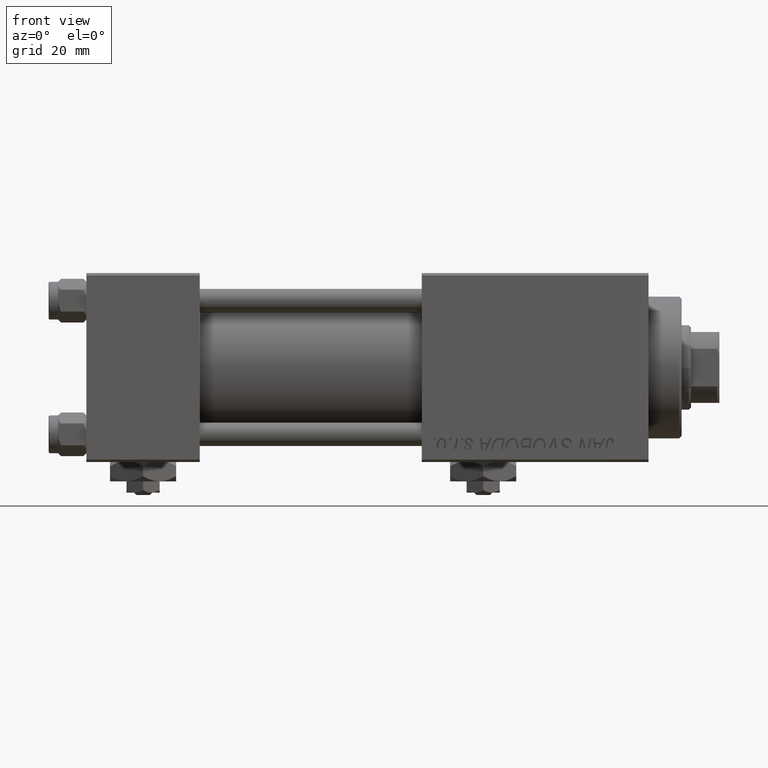
[diagram: clean part render]
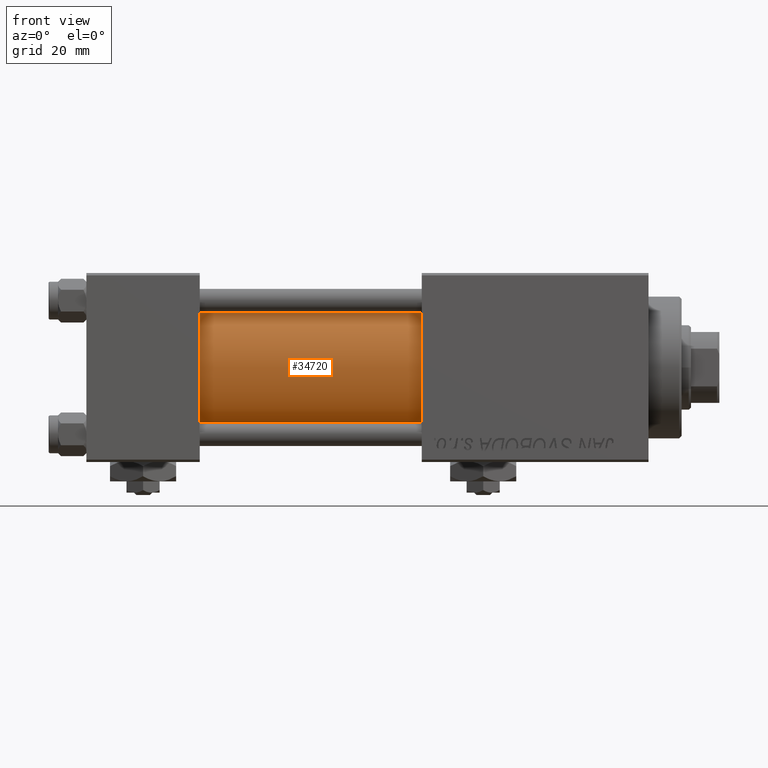
[diagram: same view with one face highlighted and labeled with its STEP entity id]
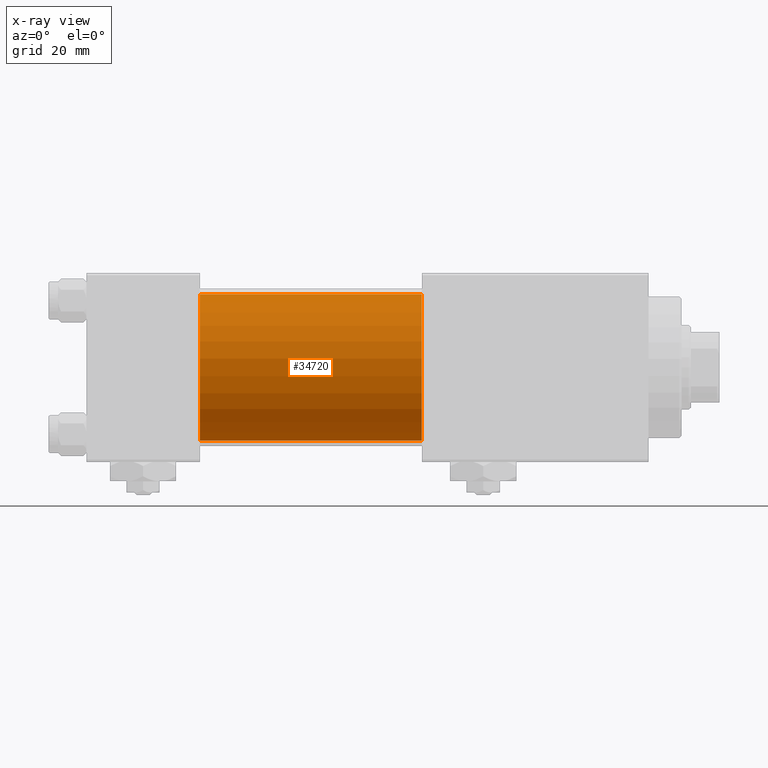
[diagram: x-ray of the same camera — body ghosted, the highlighted face saturated]
A machine part, front view. The second image highlights one B-rep face of the part: STEP entity #34720.
The next image is the same camera in x-ray: the body ghosted, the highlighted face saturated — about 0% of this face is hidden behind the body in this view.
In plain terms, the highlighted cylindrical surface (partial cylindrical patch) has radius 15.5 mm, axis along (-1, -0, -0).
Its self-contained STEP definition (entity closure, byte-faithful):
#1731 = CYLINDRICAL_SURFACE ( 'NONE', #14307, 15.50000000000000000 ) ;
#4228 = DIRECTION ( 'NONE',  ( 0.000000000000000000, 0.000000000000000000, -1.000000000000000000 ) ) ;
#4459 = CARTESIAN_POINT ( 'NONE',  ( 71.00000000000001421, -7.038826752868131828E-16, -15.50000000000000000 ) ) ;
#6271 = DIRECTION ( 'NONE',  ( -1.000000000000000000, -0.000000000000000000, -0.000000000000000000 ) ) ;
#7239 = ORIENTED_EDGE ( 'NONE', *, *, #46759, .F. ) ;
#8273 = VERTEX_POINT ( 'NONE', #9889 ) ;
#9032 = DIRECTION ( 'NONE',  ( 0.000000000000000000, 0.000000000000000000, 1.000000000000000000 ) ) ;
#9889 = CARTESIAN_POINT ( 'NONE',  ( 24.00000000000000000, -2.602085213965210642E-15, 15.50000000000000000 ) ) ;
#12037 = CARTESIAN_POINT ( 'NONE',  ( 24.00000000000000000, -7.038826752868131828E-16, -15.50000000000000000 ) ) ;
#12098 = LINE ( 'NONE', #4459, #39030 ) ;
#13846 = CARTESIAN_POINT ( 'NONE',  ( 71.00000000000001421, -2.602085213965210642E-15, 0.000000000000000000 ) ) ;
#14307 = AXIS2_PLACEMENT_3D ( 'NONE', #13846, #49679, #38082 ) ;
#19419 = VERTEX_POINT ( 'NONE', #12037 ) ;
#22944 = ORIENTED_EDGE ( 'NONE', *, *, #40416, .T. ) ;
#23446 = AXIS2_PLACEMENT_3D ( 'NONE', #48480, #35845, #4228 ) ;
#23557 = AXIS2_PLACEMENT_3D ( 'NONE', #48831, #29068, #9032 ) ;
#26808 = CIRCLE ( 'NONE', #23446, 15.50000000000000000 ) ;
#27745 = EDGE_CURVE ( 'NONE', #29823, #33167, #26808, .T. ) ;
#29068 = DIRECTION ( 'NONE',  ( 1.000000000000000000, 0.000000000000000000, 0.000000000000000000 ) ) ;
#29823 = VERTEX_POINT ( 'NONE', #41880 ) ;
#30241 = CARTESIAN_POINT ( 'NONE',  ( 71.00000000000001421, -2.602085213965210642E-15, 15.50000000000000000 ) ) ;
#32576 = ORIENTED_EDGE ( 'NONE', *, *, #33675, .T. ) ;
#33167 = VERTEX_POINT ( 'NONE', #45852 ) ;
#33675 = EDGE_CURVE ( 'NONE', #8273, #19419, #46241, .T. ) ;
#33819 = EDGE_LOOP ( 'NONE', ( #7239, #34789, #22944, #32576 ) ) ;
#34720 = ADVANCED_FACE ( 'NONE', ( #37827 ), #1731, .T. ) ;
#34789 = ORIENTED_EDGE ( 'NONE', *, *, #27745, .F. ) ;
#35567 = DIRECTION ( 'NONE',  ( -1.000000000000000000, -0.000000000000000000, -0.000000000000000000 ) ) ;
#35845 = DIRECTION ( 'NONE',  ( 1.000000000000000000, 0.000000000000000000, 0.000000000000000000 ) ) ;
#37827 = FACE_OUTER_BOUND ( 'NONE', #33819, .T. ) ;
#37889 = LINE ( 'NONE', #30241, #45638 ) ;
#38082 = DIRECTION ( 'NONE',  ( 0.000000000000000000, 0.000000000000000000, 1.000000000000000000 ) ) ;
#39030 = VECTOR ( 'NONE', #35567, 1000.000000000000000 ) ;
#40416 = EDGE_CURVE ( 'NONE', #29823, #8273, #37889, .T. ) ;
#41880 = CARTESIAN_POINT ( 'NONE',  ( 71.00000000000001421, -2.602085213965210642E-15, 15.50000000000000000 ) ) ;
#45638 = VECTOR ( 'NONE', #6271, 1000.000000000000000 ) ;
#45852 = CARTESIAN_POINT ( 'NONE',  ( 71.00000000000001421, -7.038826752868131828E-16, -15.50000000000000000 ) ) ;
#46241 = CIRCLE ( 'NONE', #23557, 15.50000000000000000 ) ;
#46759 = EDGE_CURVE ( 'NONE', #33167, #19419, #12098, .T. ) ;
#48480 = CARTESIAN_POINT ( 'NONE',  ( 71.00000000000001421, -2.602085213965210642E-15, 0.000000000000000000 ) ) ;
#48831 = CARTESIAN_POINT ( 'NONE',  ( 24.00000000000000000, -2.602085213965210642E-15, 0.000000000000000000 ) ) ;
#49679 = DIRECTION ( 'NONE',  ( -1.000000000000000000, -0.000000000000000000, -0.000000000000000000 ) ) ;